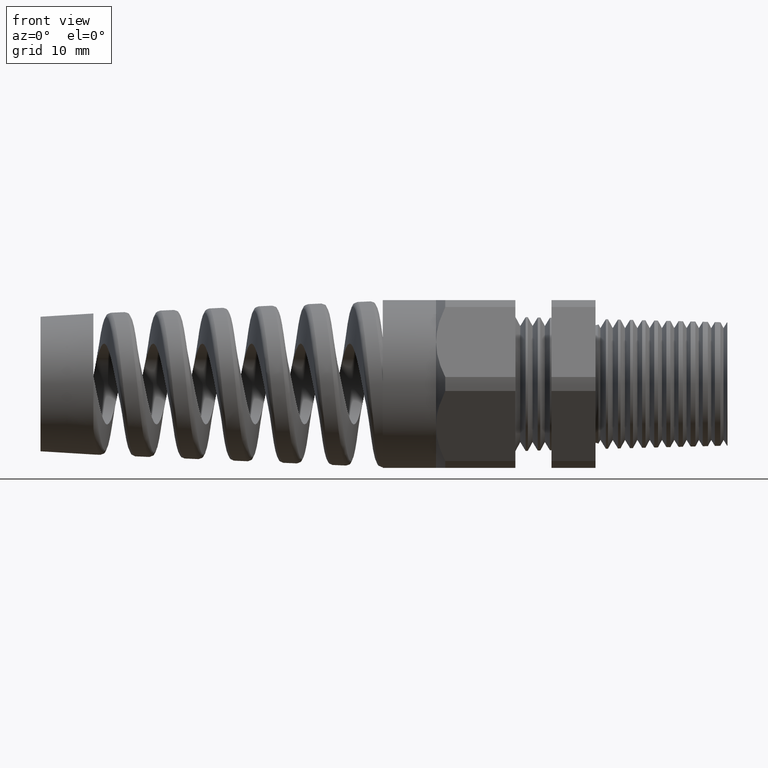
[diagram: clean part render]
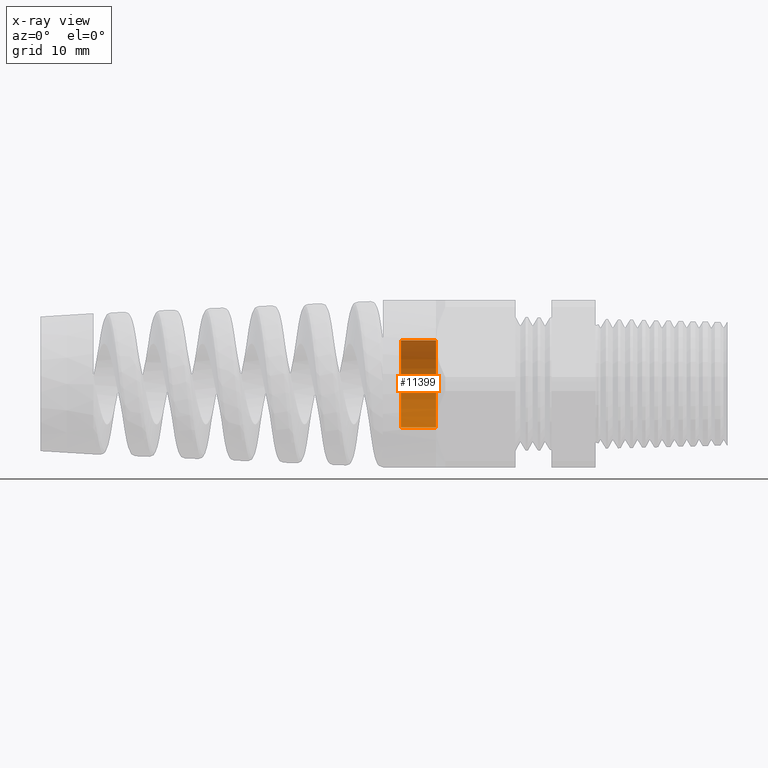
[diagram: x-ray — body ghosted, one internal face saturated and labeled with its STEP entity id]
A machine part, front view, then the same camera in x-ray: the body is ghosted and one INTERNAL B-rep face — a face not visible from any outside direction — is saturated and labeled: STEP entity #11399.
In plain terms, the highlighted cylindrical surface (partial cylindrical patch) has radius 4.9558 mm, axis along (1, 0, 0).
Its self-contained STEP definition (entity closure, byte-faithful):
#1875 = CYLINDRICAL_SURFACE ( 'NONE', #1881, 0.1951107050843643400 ) ;
#1876 = FACE_OUTER_BOUND ( 'NONE', #11357, .T. ) ;
#1878 = DIRECTION ( 'NONE',  ( 0.0000000000000000000, 0.0000000000000000000, -1.000000000000000000 ) ) ;
#1879 = DIRECTION ( 'NONE',  ( 1.000000000000000000, 0.0000000000000000000, 0.0000000000000000000 ) ) ;
#1880 = CARTESIAN_POINT ( 'NONE',  ( -1.260843166534453300, 0.0000000000000000000, 0.0000000000000000000 ) ) ;
#1881 = AXIS2_PLACEMENT_3D ( 'NONE', #1880, #1879, #1878 ) ;
#1968 = DIRECTION ( 'NONE',  ( 0.0000000000000000000, 0.0000000000000000000, -1.000000000000000000 ) ) ;
#1969 = DIRECTION ( 'NONE',  ( -1.000000000000000000, 0.0000000000000000000, 0.0000000000000000000 ) ) ;
#1970 = CARTESIAN_POINT ( 'NONE',  ( -1.179999999999999900, 0.0000000000000000000, 0.0000000000000000000 ) ) ;
#1971 = AXIS2_PLACEMENT_3D ( 'NONE', #1970, #1969, #1968 ) ;
#1972 = CIRCLE ( 'NONE', #1971, 0.1951107050843643400 ) ;
#2872 = CARTESIAN_POINT ( 'NONE',  ( -1.022519685039369900, 0.0000000000000000000, 0.0000000000000000000 ) ) ;
#2908 = DIRECTION ( 'NONE',  ( 0.0000000000000000000, 0.0000000000000000000, 1.000000000000000000 ) ) ;
#2909 = DIRECTION ( 'NONE',  ( 1.000000000000000000, 0.0000000000000000000, 0.0000000000000000000 ) ) ;
#2910 = AXIS2_PLACEMENT_3D ( 'NONE', #2872, #2909, #2908 ) ;
#2911 = CIRCLE ( 'NONE', #2910, 0.1951107050843643400 ) ;
#4966 = VERTEX_POINT ( 'NONE', #7896 ) ;
#4975 = EDGE_CURVE ( 'NONE', #4966, #4976, #7885, .T. ) ;
#4976 = VERTEX_POINT ( 'NONE', #7949 ) ;
#7881 = DIRECTION ( 'NONE',  ( 1.000000000000000000, 0.0000000000000000000, 0.0000000000000000000 ) ) ;
#7882 = VECTOR ( 'NONE', #7881, 39.37007874015748100 ) ;
#7884 = CARTESIAN_POINT ( 'NONE',  ( -1.260843166534453300, 0.0000000000000000000, -0.1951107050843643400 ) ) ;
#7885 = LINE ( 'NONE', #7884, #7882 ) ;
#7896 = CARTESIAN_POINT ( 'NONE',  ( -1.179999999999999900, 0.0000000000000000000, -0.1951107050843643400 ) ) ;
#7949 = CARTESIAN_POINT ( 'NONE',  ( -1.022519685039369900, 0.0000000000000000000, -0.1951107050843643400 ) ) ;
#9719 = VERTEX_POINT ( 'NONE', #10576 ) ;
#9784 = VERTEX_POINT ( 'NONE', #10276 ) ;
#9823 = EDGE_CURVE ( 'NONE', #9784, #9719, #10275, .T. ) ;
#10272 = DIRECTION ( 'NONE',  ( 1.000000000000000000, 0.0000000000000000000, 0.0000000000000000000 ) ) ;
#10273 = VECTOR ( 'NONE', #10272, 39.37007874015748100 ) ;
#10274 = CARTESIAN_POINT ( 'NONE',  ( -1.260843166534453300, 2.389417004609499700E-017, 0.1951107050843643400 ) ) ;
#10275 = LINE ( 'NONE', #10274, #10273 ) ;
#10276 = CARTESIAN_POINT ( 'NONE',  ( -1.179999999999999900, 2.389417004609499700E-017, 0.1951107050843643400 ) ) ;
#10576 = CARTESIAN_POINT ( 'NONE',  ( -1.022519685039369900, 2.389417004609499700E-017, 0.1951107050843643400 ) ) ;
#11357 = EDGE_LOOP ( 'NONE', ( #11383, #11452, #11432, #11438 ) ) ;
#11383 = ORIENTED_EDGE ( 'NONE', *, *, #9823, .F. ) ;
#11399 = ADVANCED_FACE ( 'NONE', ( #1876 ), #1875, .F. ) ;
#11432 = ORIENTED_EDGE ( 'NONE', *, *, #4975, .T. ) ;
#11433 = EDGE_CURVE ( 'NONE', #9784, #4966, #1972, .T. ) ;
#11438 = ORIENTED_EDGE ( 'NONE', *, *, #11663, .T. ) ;
#11452 = ORIENTED_EDGE ( 'NONE', *, *, #11433, .T. ) ;
#11663 = EDGE_CURVE ( 'NONE', #4976, #9719, #2911, .T. ) ;